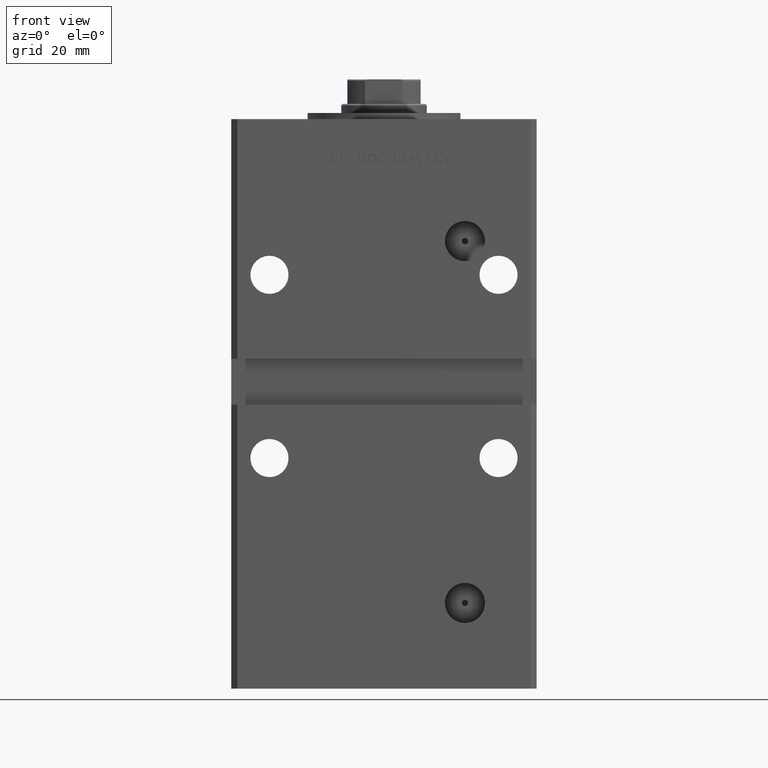
[diagram: clean part render]
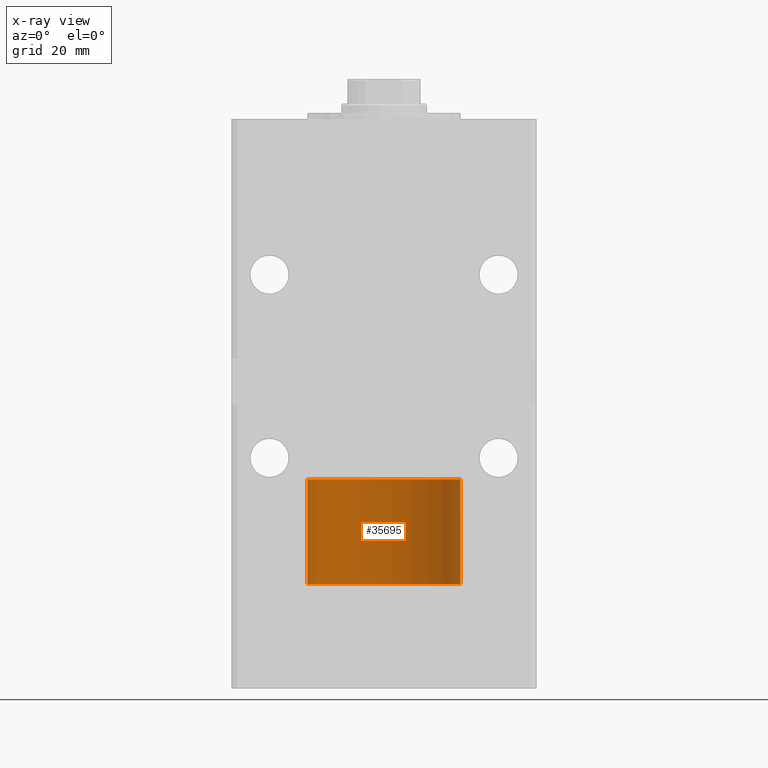
[diagram: x-ray — body ghosted, one internal face saturated and labeled with its STEP entity id]
A machine part, front view, then the same camera in x-ray: the body is ghosted and one INTERNAL B-rep face — a face not visible from any outside direction — is saturated and labeled: STEP entity #35695.
In plain terms, the highlighted cylindrical surface (partial cylindrical patch) has radius 25 mm, axis along (-0, -0, -1).
Its self-contained STEP definition (entity closure, byte-faithful):
#676 = FACE_OUTER_BOUND ( 'NONE', #33166, .T. ) ;
#762 = VERTEX_POINT ( 'NONE', #26520 ) ;
#783 = CARTESIAN_POINT ( 'NONE',  ( 25.00000000000000000, 3.061616997868383043E-15, 0.000000000000000000 ) ) ;
#1532 = VERTEX_POINT ( 'NONE', #17563 ) ;
#3349 = EDGE_CURVE ( 'NONE', #1532, #762, #31810, .T. ) ;
#4322 = CIRCLE ( 'NONE', #8638, 25.00000000000000000 ) ;
#4390 = EDGE_CURVE ( 'NONE', #39831, #1532, #4322, .T. ) ;
#7084 = EDGE_CURVE ( 'NONE', #10218, #762, #30223, .T. ) ;
#7858 = AXIS2_PLACEMENT_3D ( 'NONE', #35272, #22663, #38772 ) ;
#8638 = AXIS2_PLACEMENT_3D ( 'NONE', #40981, #11426, #27846 ) ;
#10218 = VERTEX_POINT ( 'NONE', #783 ) ;
#11426 = DIRECTION ( 'NONE',  ( 0.000000000000000000, 0.000000000000000000, 1.000000000000000000 ) ) ;
#15056 = VECTOR ( 'NONE', #24534, 1000.000000000000000 ) ;
#16814 = DIRECTION ( 'NONE',  ( -1.000000000000000000, 0.000000000000000000, 0.000000000000000000 ) ) ;
#17342 = DIRECTION ( 'NONE',  ( -0.000000000000000000, -0.000000000000000000, -1.000000000000000000 ) ) ;
#17563 = CARTESIAN_POINT ( 'NONE',  ( -25.00000000000000000, 0.000000000000000000, 34.25000000000000000 ) ) ;
#18304 = LINE ( 'NONE', #47054, #35318 ) ;
#22293 = AXIS2_PLACEMENT_3D ( 'NONE', #49858, #17342, #16814 ) ;
#22663 = DIRECTION ( 'NONE',  ( 0.000000000000000000, 0.000000000000000000, 1.000000000000000000 ) ) ;
#23306 = ORIENTED_EDGE ( 'NONE', *, *, #3349, .F. ) ;
#24534 = DIRECTION ( 'NONE',  ( -0.000000000000000000, -0.000000000000000000, -1.000000000000000000 ) ) ;
#26520 = CARTESIAN_POINT ( 'NONE',  ( -25.00000000000000000, 0.000000000000000000, 0.000000000000000000 ) ) ;
#27411 = ORIENTED_EDGE ( 'NONE', *, *, #7084, .T. ) ;
#27846 = DIRECTION ( 'NONE',  ( 1.000000000000000000, 0.000000000000000000, 0.000000000000000000 ) ) ;
#30223 = CIRCLE ( 'NONE', #7858, 25.00000000000000000 ) ;
#31810 = LINE ( 'NONE', #35828, #15056 ) ;
#33166 = EDGE_LOOP ( 'NONE', ( #43038, #39266, #27411, #23306 ) ) ;
#35272 = CARTESIAN_POINT ( 'NONE',  ( 0.000000000000000000, 0.000000000000000000, 0.000000000000000000 ) ) ;
#35318 = VECTOR ( 'NONE', #35500, 1000.000000000000000 ) ;
#35500 = DIRECTION ( 'NONE',  ( -0.000000000000000000, -0.000000000000000000, -1.000000000000000000 ) ) ;
#35695 = ADVANCED_FACE ( 'NONE', ( #676 ), #36691, .T. ) ;
#35828 = CARTESIAN_POINT ( 'NONE',  ( -25.00000000000000000, 0.000000000000000000, 34.25000000000000000 ) ) ;
#36691 = CYLINDRICAL_SURFACE ( 'NONE', #22293, 25.00000000000000000 ) ;
#38772 = DIRECTION ( 'NONE',  ( 1.000000000000000000, 0.000000000000000000, 0.000000000000000000 ) ) ;
#39266 = ORIENTED_EDGE ( 'NONE', *, *, #46830, .T. ) ;
#39831 = VERTEX_POINT ( 'NONE', #43710 ) ;
#40981 = CARTESIAN_POINT ( 'NONE',  ( 0.000000000000000000, 0.000000000000000000, 34.25000000000000000 ) ) ;
#43038 = ORIENTED_EDGE ( 'NONE', *, *, #4390, .F. ) ;
#43710 = CARTESIAN_POINT ( 'NONE',  ( 25.00000000000000000, 3.061616997868383043E-15, 34.25000000000000000 ) ) ;
#46830 = EDGE_CURVE ( 'NONE', #39831, #10218, #18304, .T. ) ;
#47054 = CARTESIAN_POINT ( 'NONE',  ( 25.00000000000000000, 3.061616997868383043E-15, 34.25000000000000000 ) ) ;
#49858 = CARTESIAN_POINT ( 'NONE',  ( 0.000000000000000000, 0.000000000000000000, 34.25000000000000000 ) ) ;